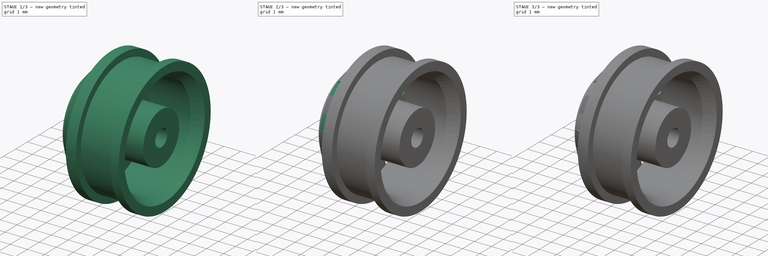
[diagram: build sequence overview — one tinted view per stage of 3, left to right]
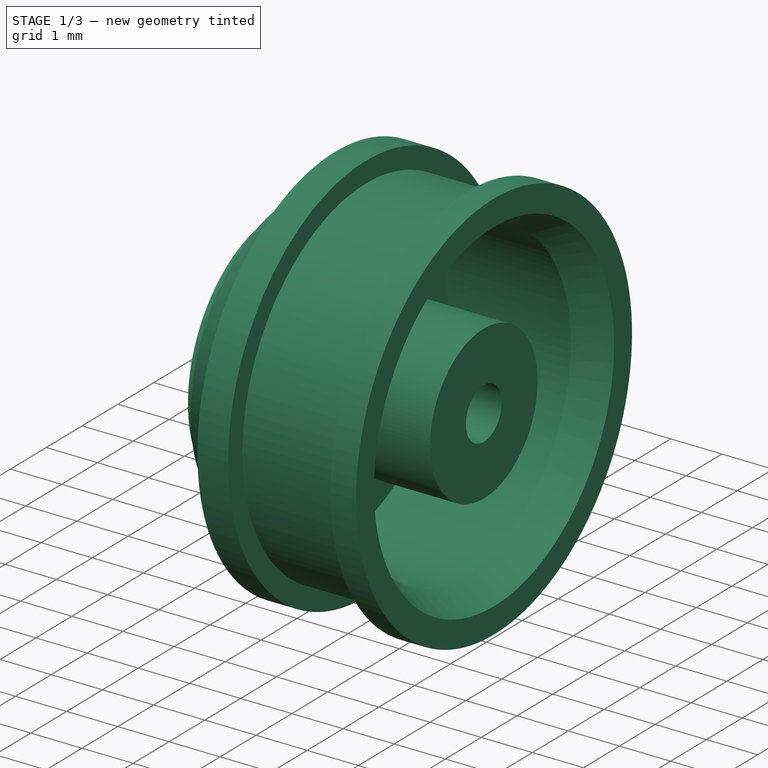
[diagram: stage 1 of 3 — iso view after this stage's code; geometry added in this stage tinted green]
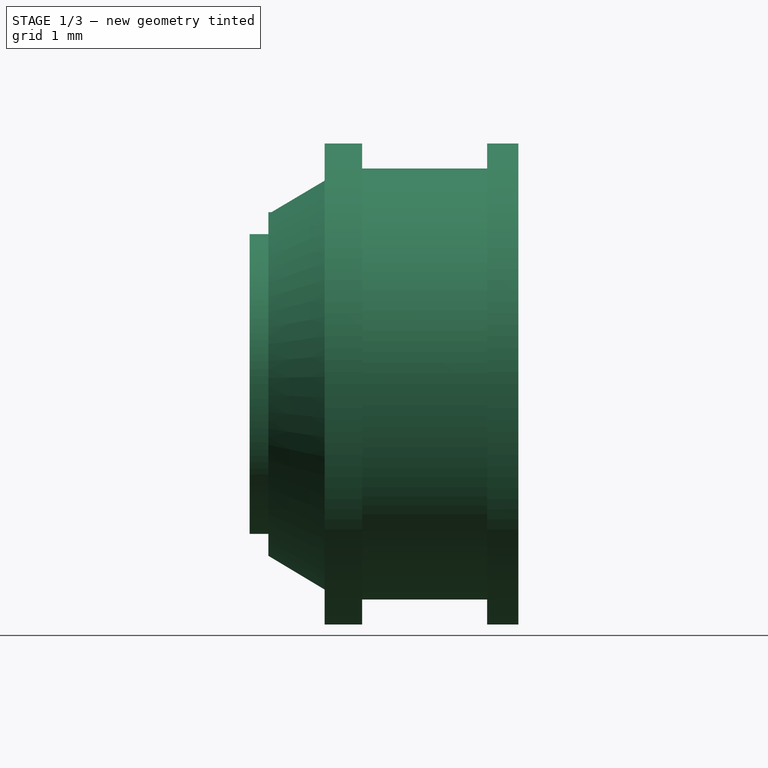
[diagram: stage 1 of 3 — front view after this stage's code; geometry added in this stage tinted green]
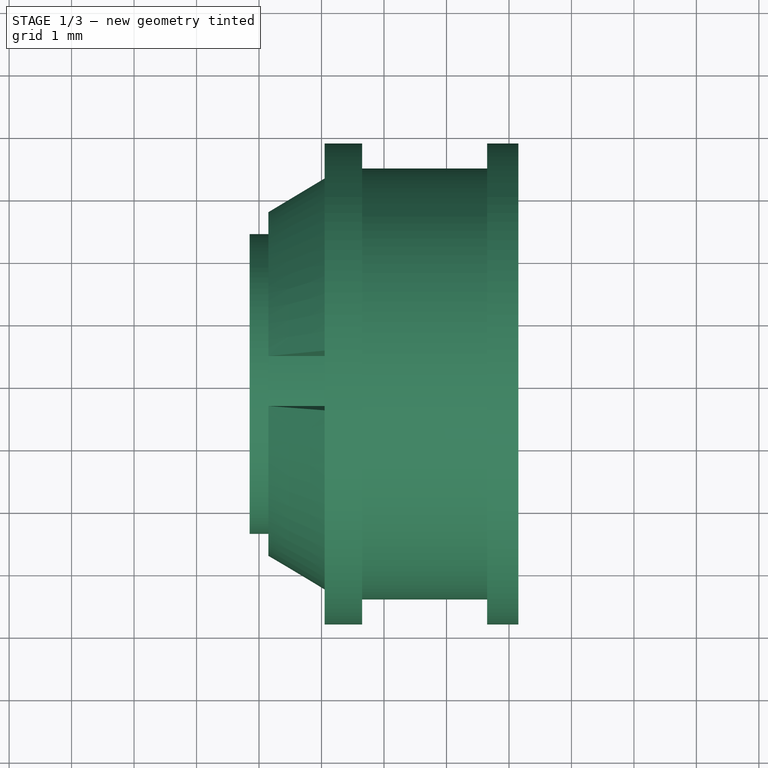
[diagram: stage 1 of 3 — top view after this stage's code; geometry added in this stage tinted green]
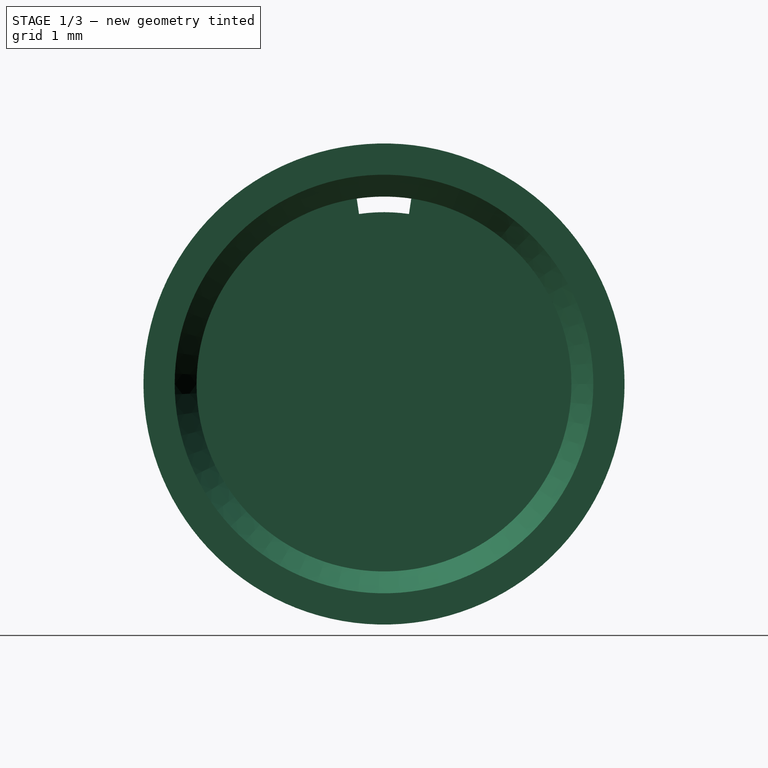
[diagram: stage 1 of 3 — right view after this stage's code; geometry added in this stage tinted green]
FCSTD DOCUMENT  (FreeCAD 0.16R6264 (Git))
Label: Gente-Avant
License: All rights reserved
LicenseURL: http://en.wikipedia.org/wiki/All_rights_reserved
objects: Sketcher::SketchObject×4, PartDesign::Pocket×3, PartDesign::PolarPattern×2, PartDesign::Revolution×1
note: 14 computed .brp shape members not serialized (recipe doc carries the construction recipe); baked Part::Feature solids carry a one-line shape summary decoded from their .brp

FEATURE [Sketcher::SketchObject] Sketch
  sketch-geometry (24):
    g0: LineSegment StartX=-0.15 StartY=0 StartZ=0 EndX=-0.15 EndY=0.5 EndZ=0
    g1: LineSegment StartX=-0.15 StartY=0.5 StartZ=0 EndX=1.95 EndY=0.5 EndZ=0
    g2: LineSegment StartX=1.95 StartY=0.5 StartZ=0 EndX=1.95 EndY=1.5 EndZ=0
    g3: LineSegment StartX=1.95 StartY=1.5 StartZ=0 EndX=-0.85 EndY=1.5 EndZ=0
    g4: LineSegment StartX=-0.85 StartY=1.5 StartZ=0 EndX=-0.85 EndY=3 EndZ=0
    g5: LineSegment StartX=-0.85 StartY=3 StartZ=0 EndX=1.55 EndY=3 EndZ=0
    g6: LineSegment StartX=1.55 StartY=3 StartZ=0 EndX=2.15 EndY=3.35 EndZ=0
    g7: LineSegment StartX=2.15 StartY=3.35 StartZ=0 EndX=2.15 EndY=3.85 EndZ=0
    g8: LineSegment StartX=2.15 StartY=3.85 StartZ=0 EndX=1.65 EndY=3.85 EndZ=0
    g9: LineSegment StartX=1.65 StartY=3.85 StartZ=0 EndX=1.65 EndY=3.45 EndZ=0
    g10: LineSegment StartX=1.65 StartY=3.45 StartZ=0 EndX=-0.35 EndY=3.45 EndZ=0
    g11: LineSegment StartX=-0.35 StartY=3.45 StartZ=0 EndX=-0.35 EndY=3.85 EndZ=0
    g12: LineSegment StartX=-0.35 StartY=3.85 StartZ=0 EndX=-0.95 EndY=3.85 EndZ=0
    g13: LineSegment StartX=-0.95 StartY=3.85 StartZ=0 EndX=-0.95 EndY=3.55 EndZ=0
    g14: LineSegment StartX=-0.95 StartY=3.55 StartZ=0 EndX=-0.85 EndY=3.35 EndZ=0
    g15: LineSegment StartX=-0.85 StartY=3.35 StartZ=0 EndX=-1.85 EndY=2.75 EndZ=0
    g16: LineSegment StartX=-1.85 StartY=2.75 StartZ=0 EndX=-1.85 EndY=2.4 EndZ=0
    g17: LineSegment StartX=-1.85 StartY=2.4 StartZ=0 EndX=-2.15 EndY=2.4 EndZ=0
    g18: LineSegment StartX=-2.15 StartY=2.4 StartZ=0 EndX=-2.15 EndY=1.4 EndZ=0
    g19: LineSegment StartX=-2.15 StartY=1.4 StartZ=0 EndX=-0.65 EndY=1.4 EndZ=0
    g20: LineSegment StartX=-0.65 StartY=1.4 StartZ=0 EndX=-0.65 EndY=0.6 EndZ=0
    g21: LineSegment StartX=-0.65 StartY=0.6 StartZ=0 EndX=-1.15 EndY=0.6 EndZ=0
    g22: LineSegment StartX=-1.15 StartY=0.6 StartZ=0 EndX=-1.15 EndY=0 EndZ=0
    g23: LineSegment StartX=-1.15 StartY=0 StartZ=0 EndX=-0.15 EndY=0 EndZ=0
  constraints (72):
    c: PointOnObject(g0,g-1)
    c: Vertical(g0)
    c: Coincident(g0,g1)
    c: Horizontal(g1)
    c: Coincident(g1,g2)
    c: Coincident(g2,g3)
    c: Horizontal(g3)
    c: Coincident(g3,g4)
    c: Vertical(g4)
    c: Coincident(g4,g5)
    c: Horizontal(g5)
    c: Coincident(g5,g6)
    c: Coincident(g6,g7)
    c: Coincident(g7,g8)
    c: Horizontal(g8)
    c: Coincident(g8,g9)
    c: Vertical(g9)
    c: Coincident(g9,g10)
    c: Horizontal(g10)
    c: Coincident(g10,g11)
    c: Coincident(g11,g12)
    c: Horizontal(g12)
    c: Coincident(g12,g13)
    c: Coincident(g13,g14)
    c: Coincident(g14,g15)
    c: Coincident(g15,g16)
    c: Vertical(g16)
    c: Coincident(g16,g17)
    c: Horizontal(g17)
    c: Coincident(g17,g18)
    c: Vertical(g18)
    c: Coincident(g18,g19)
    c: Coincident(g19,g20)
    c: Vertical(g20)
    c: Coincident(g20,g21)
    c: Horizontal(g21)
    c: Coincident(g21,g22)
    c: Vertical(g22)
    c: Coincident(g22,g23)
    c: Horizontal(g23)
    c: Coincident(g0,g23)
    c: Vertical(g13)
    c: Vertical(g7)
    c: Vertical(g2)
    c: Horizontal(g19)
    c: DistanceX(g17,g7) = 4.3
    c: Vertical(g11)
    c: DistanceY(g7) = 3.85
    c: Equal(g11,g9)
    c: DistanceY(g9) = -0.4
    c: DistanceY(g13) = -0.3
    c: DistanceY(g5,g7) = 0.85
    c: DistanceX(g8) = -0.5
    c: DistanceX(g12) = -0.6
    c: Distance(g7) = 0.5
    c: DistanceX(g6) = 0.6
    c: DistanceY(g15,g12) = 1.1
    c: DistanceY(g14) = -0.2
    c: DistanceX(g17) = -0.3
    c: DistanceX(g17,g12) = 1.2
    c: DistanceX(g14) = 0.1
    c: DistanceY(g16) = -0.35
    c: DistanceY(g18) = -1
    c: DistanceY(g20) = -0.8
    c: DistanceX(g21) = -0.5
    c: DistanceX(g19) = 1.5
    c: DistanceY(g4) = 1.5
    c: DistanceY(g2) = 1
    c: DistanceX(g4,g7) = 3
    c: DistanceX(g3) = -2.8
    c: DistanceX(g23) = 1
    c: DistanceX(g7) = 2.15
FEATURE [PartDesign::Revolution] Revolution
  Angle = 360
  Axis = (1,0,0)
  Base = (0,0,0)
  ReferenceAxis = -> Sketch [H_Axis]
  Sketch = -> Sketch
FEATURE [Sketcher::SketchObject] Sketch001
  Support = -> Revolution [Face19]
  sketch-geometry (4):
    g0: ArcOfCircle CenterX=0 CenterY=0 CenterZ=0 NormalX=0 NormalY=0 NormalZ=1 Radius=2.75 StartAngle=1.42482 EndAngle=1.71677
    g1: ArcOfCircle CenterX=0 CenterY=0 CenterZ=0 NormalX=0 NormalY=0 NormalZ=1 Radius=3.35 StartAngle=1.42482 EndAngle=1.71677
    g2: LineSegment StartX=-0.487273 StartY=3.31437 StartZ=0 EndX=-0.4 EndY=2.72075 EndZ=0
    g3: LineSegment StartX=0.487273 StartY=3.31437 StartZ=0 EndX=0.4 EndY=2.72075 EndZ=0
  constraints (12):
    c: Coincident(g0,g-1)
    c: Coincident(g1,g-1)
    c: Coincident(g2,g1)
    c: Coincident(g2,g0)
    c: Coincident(g3,g1)
    c: Coincident(g3,g0)
    c: Perpendicular(g1,g3) = 1.5708
    c: Perpendicular(g1,g2) = 1.5708
    c: Radius(g0) = 2.75
    c: Radius(g1) = 3.35
    c: DistanceX(g0,g0) = 0.8
    c: DistanceX(g0) = 0.4
FEATURE [PartDesign::Pocket] Pocket
  Length = 1.3
  Sketch = -> Sketch001
  Type = 0
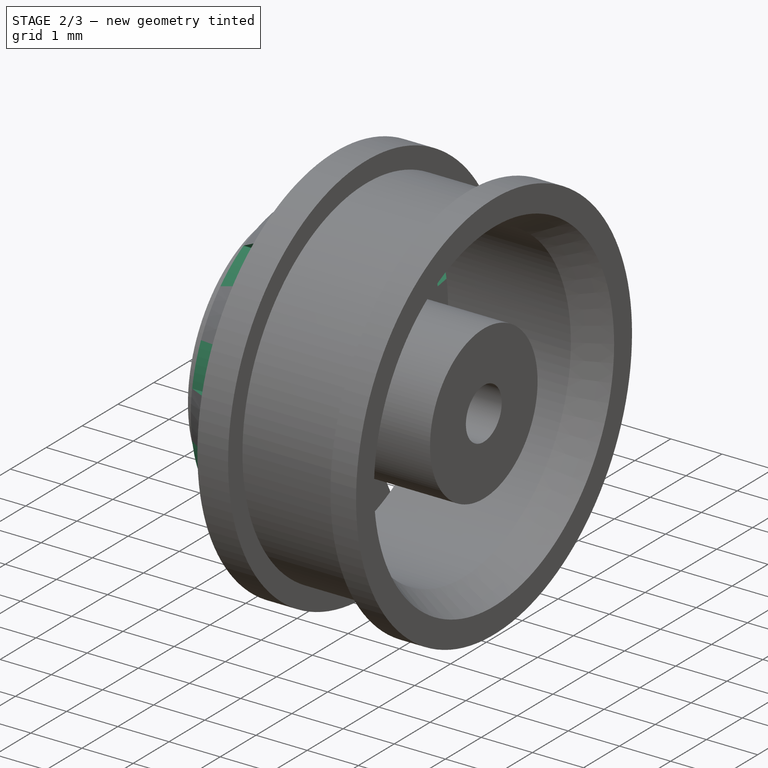
[diagram: stage 2 of 3 — iso view after this stage's code; geometry added in this stage tinted green]
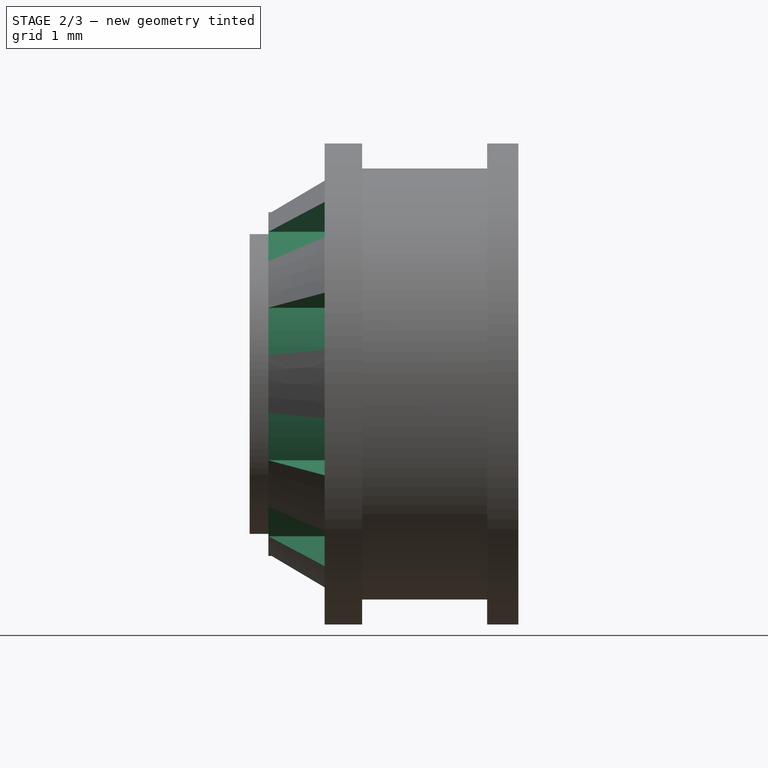
[diagram: stage 2 of 3 — front view after this stage's code; geometry added in this stage tinted green]
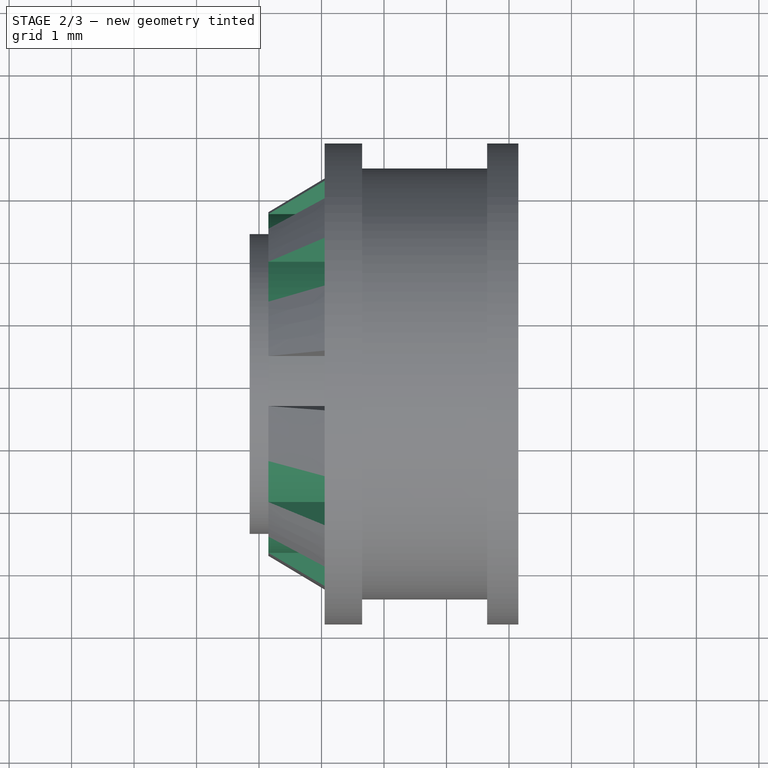
[diagram: stage 2 of 3 — top view after this stage's code; geometry added in this stage tinted green]
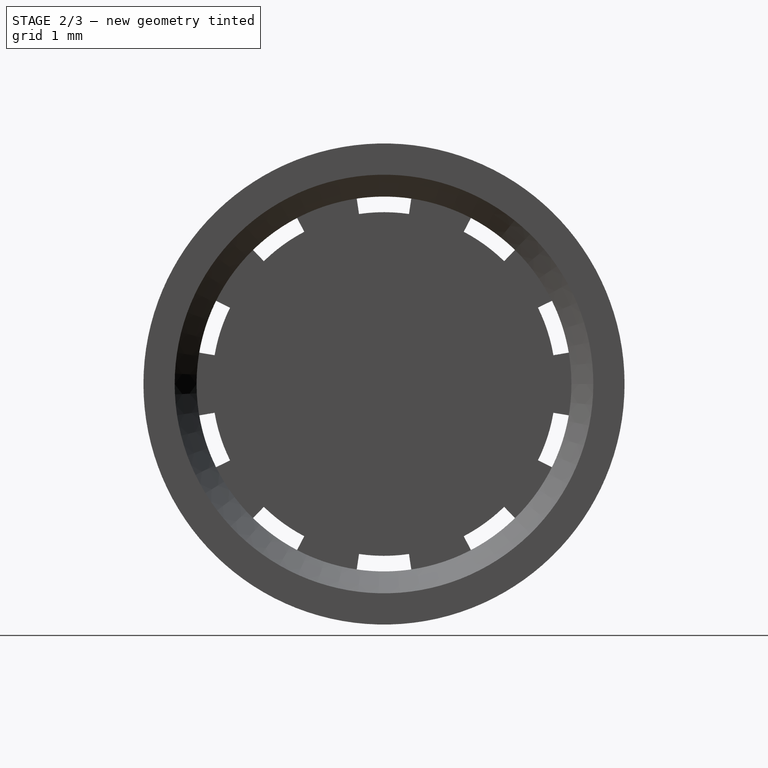
[diagram: stage 2 of 3 — right view after this stage's code; geometry added in this stage tinted green]
FEATURE [PartDesign::PolarPattern] PolarPattern
  Angle = 360
  Axis = -> Sketch001 [N_Axis]
  Occurrences = 10
  Originals = -> [Pocket]
FEATURE [Sketcher::SketchObject] Sketch002
  Support = -> PolarPattern [Face73]
  sketch-geometry (8):
    g0: LineSegment StartX=0.475 StartY=-0.274241 StartZ=0 EndX=0.475 EndY=0.274241 EndZ=0
    g1: LineSegment StartX=0.475 StartY=0.274241 StartZ=0 EndX=0 EndY=0.548483 EndZ=0
    g2: LineSegment StartX=0 StartY=0.548483 StartZ=0 EndX=-0.475 EndY=0.274241 EndZ=0
    g3: LineSegment StartX=-0.475 StartY=0.274241 StartZ=0 EndX=-0.475 EndY=-0.274241 EndZ=0
    g4: LineSegment StartX=-0.475 StartY=-0.274241 StartZ=0 EndX=0 EndY=-0.548483 EndZ=0
    g5: LineSegment StartX=0 StartY=-0.548483 StartZ=0 EndX=0.475 EndY=-0.274241 EndZ=0
    g6: Circle [constr] CenterX=0 CenterY=0 CenterZ=0 NormalX=0 NormalY=0 NormalZ=1 Radius=0.548483
    g7: Circle CenterX=0 CenterY=0 CenterZ=0 NormalX=0 NormalY=0 NormalZ=1 Radius=0.7
  constraints (18):
    c: Coincident(g0,g1)
    c: Coincident(g1,g2)
    c: Coincident(g2,g3)
    c: Coincident(g3,g4)
    c: Coincident(g4,g5)
    c: Coincident(g5,g0)
    c: Equal(g0, g1-g5) x5
    c: PointOnObject(g0,g6)
    c: PointOnObject(g1,g6)
    c: PointOnObject(g2,g6)
    c: PointOnObject(g3,g6)
    c: PointOnObject(g4,g6)
    c: PointOnObject(g5,g6)
    c: Coincident(g6,g-1)
    c: Coincident(g7,g-1)
    c: Radius(g7) = 0.7
    c: Distance(g1,g0) = 0.95
    c: Vertical(g3)
FEATURE [PartDesign::Pocket] Pocket001
  Length = 0.1
  Sketch = -> Sketch002
  Type = 0
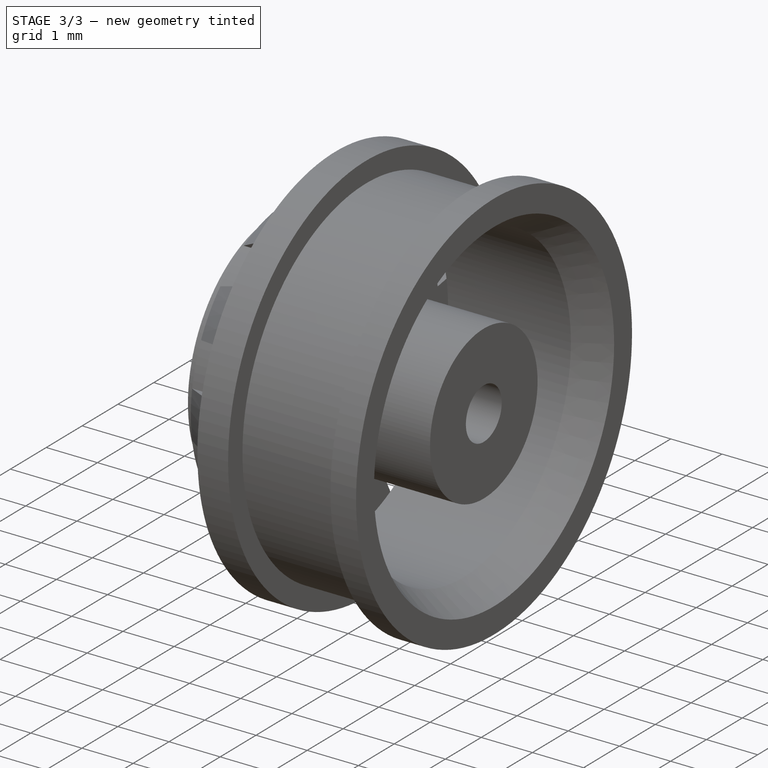
[diagram: stage 3 of 3 — iso view after this stage's code; geometry added in this stage tinted green]
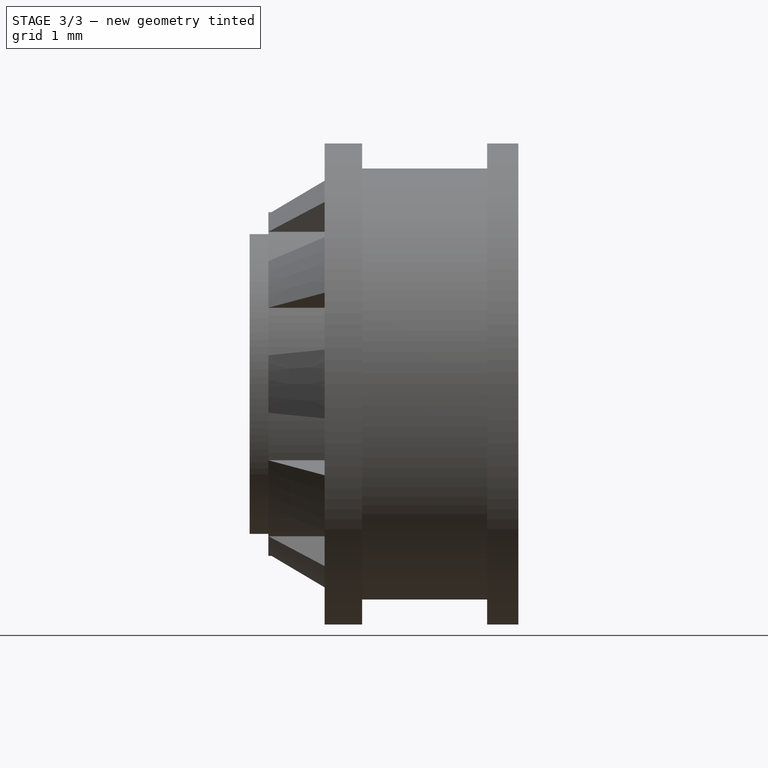
[diagram: stage 3 of 3 — front view after this stage's code; geometry added in this stage tinted green]
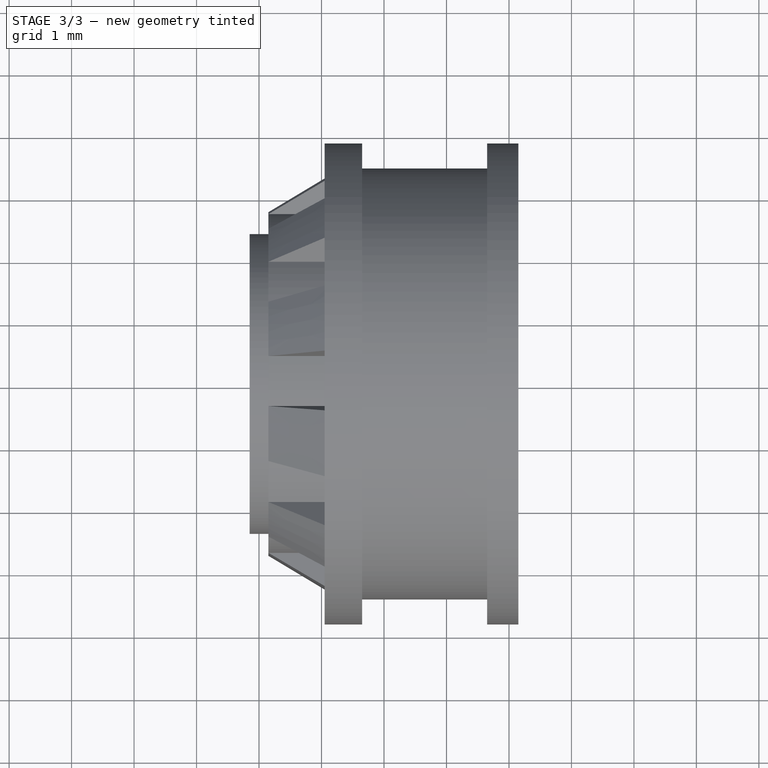
[diagram: stage 3 of 3 — top view after this stage's code; geometry added in this stage tinted green]
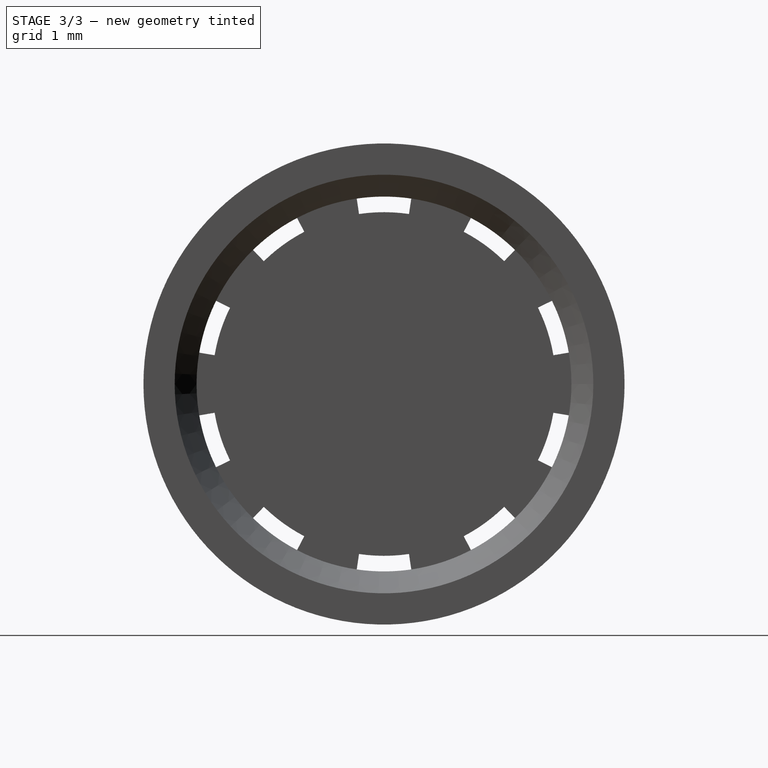
[diagram: stage 3 of 3 — right view after this stage's code; geometry added in this stage tinted green]
FEATURE [Sketcher::SketchObject] Sketch003
  Support = -> Pocket001 [Face65]
  sketch-geometry (2):
    g0: Circle CenterX=0.48658 CenterY=1.81594 CenterZ=0 NormalX=0 NormalY=0 NormalZ=1 Radius=0.4
    g1: LineSegment [constr] StartX=0.48658 StartY=1.81594 StartZ=0 EndX=0 EndY=0 EndZ=0
  constraints (5):
    c: Radius(g0) = 0.4
    c: Coincident(g1,g0)
    c: Coincident(g1,g-1)
    c: Distance(g1) = 1.88
    c: Angle(g1) = -1.8326
FEATURE [PartDesign::Pocket] Pocket002
  Length = 0.1
  Sketch = -> Sketch003
  Type = 0
FEATURE [PartDesign::PolarPattern] PolarPattern001
  Angle = 360
  Axis = -> Sketch003 [N_Axis]
  Occurrences = 10
  Originals = -> [Pocket002]
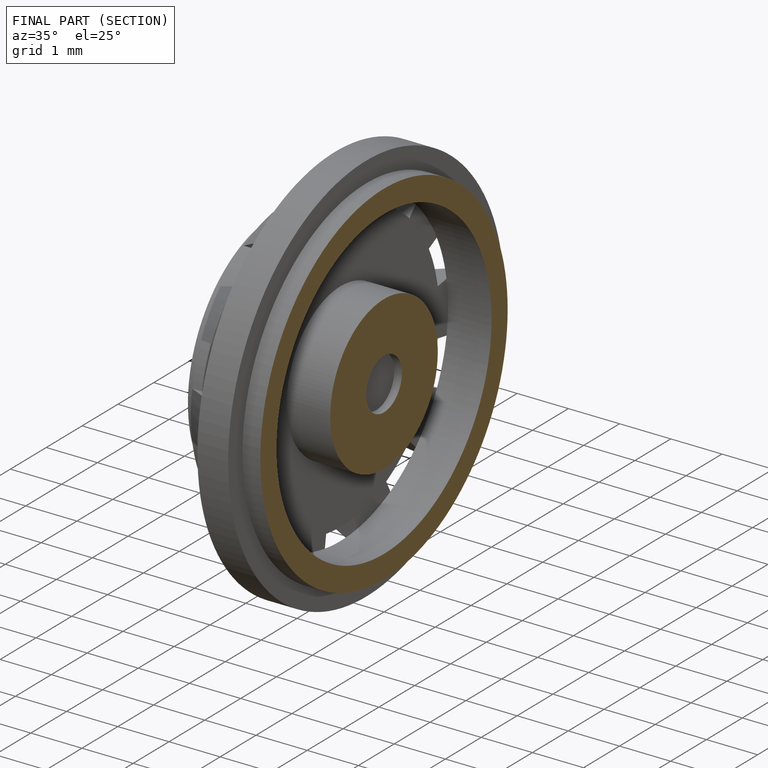
[diagram: finished part — half-section view (interior)]
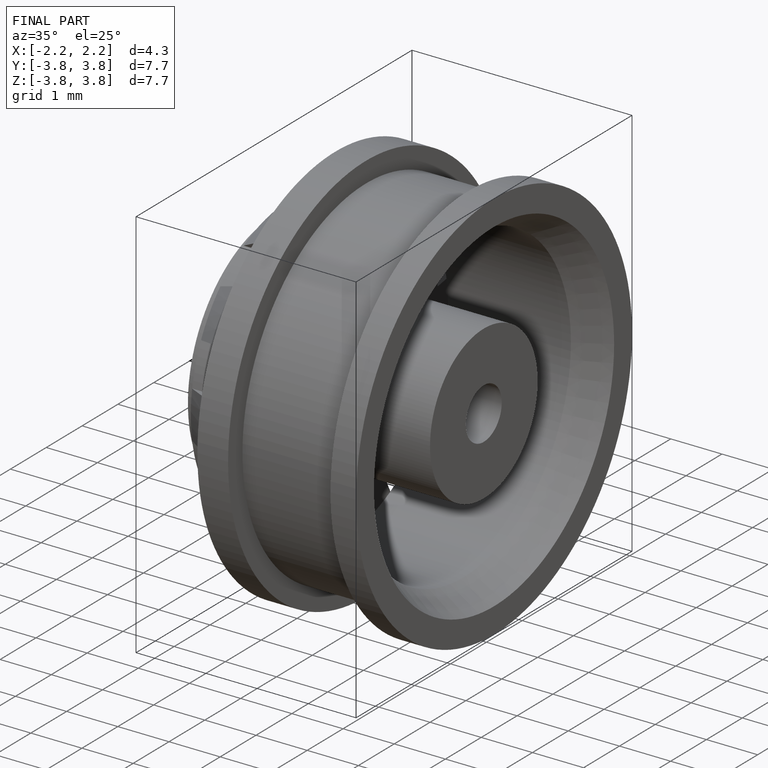
[diagram: finished part — iso view with bounding-box wireframe]
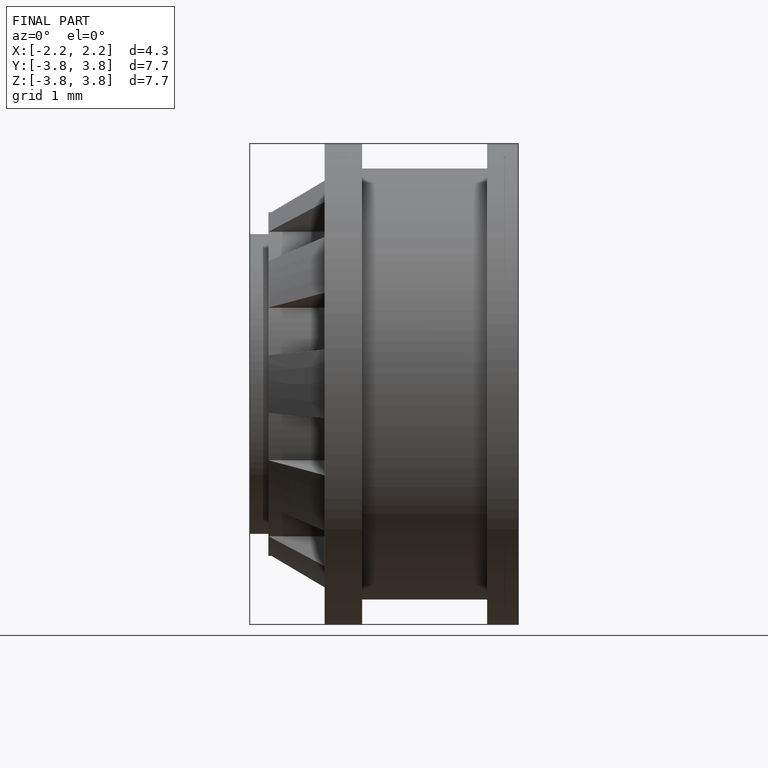
[diagram: finished part — front view with bounding-box wireframe]
